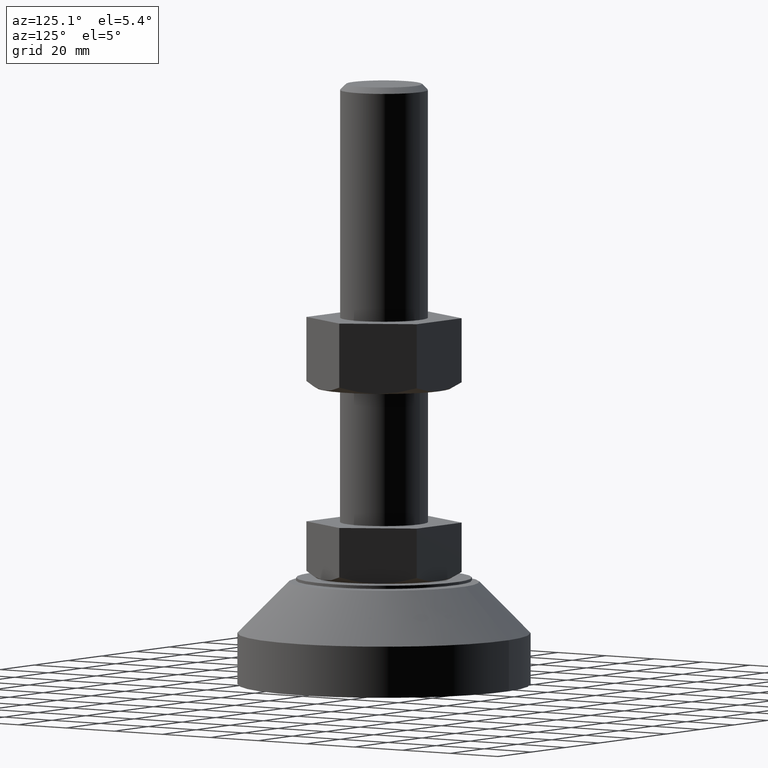
[diagram: clean part render]
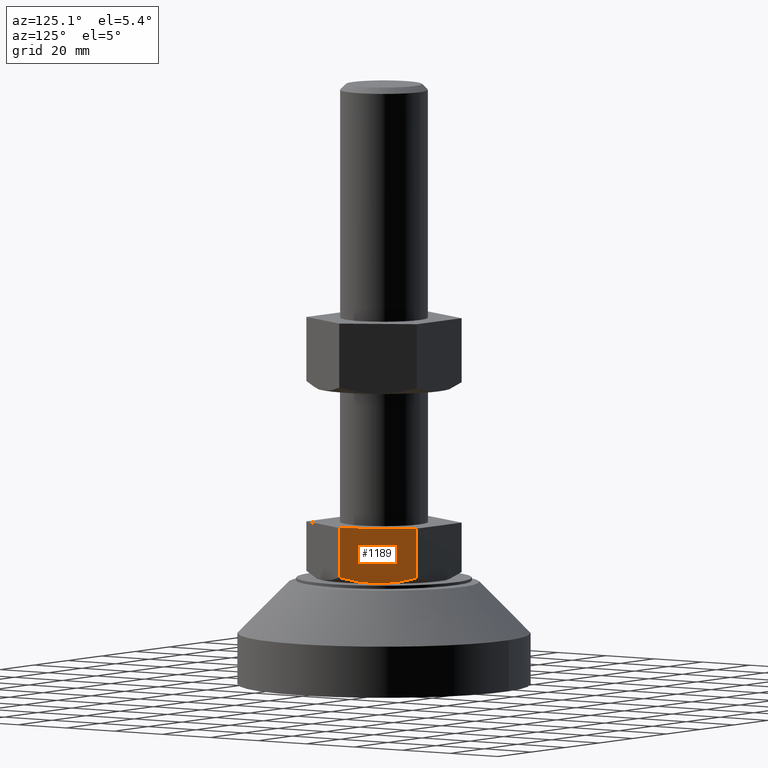
[diagram: same view with one face highlighted and labeled with its STEP entity id]
A machine part, auxiliary view. The second image highlights one B-rep face of the part: STEP entity #1189.
In plain terms, the highlighted face is a freeform B-spline surface patch.
Its self-contained STEP definition (entity closure, byte-faithful):
#1086=CARTESIAN_POINT('',(13.279056191361621,23.000000000000352,55.499999999623597));
#1087=VERTEX_POINT('',#1086);
#1088=CARTESIAN_POINT('',(26.558112382723500,1.136868E-013,55.499999999623597));
#1089=VERTEX_POINT('',#1088);
#1090=CARTESIAN_POINT('',(13.279056191361621,23.000000000000352,55.499999999623597));
#1091=CARTESIAN_POINT('',(26.558112382723500,1.136868E-013,55.499999999623597));
#1092=QUASI_UNIFORM_CURVE('',1,(#1090,#1091),.UNSPECIFIED.,.F.,.U.);
#1093=EDGE_CURVE('',#1087,#1089,#1092,.T.);
#1137=CARTESIAN_POINT('',(27.221401213778861,-1.148849955481351,35.550950036844490));
#1138=CARTESIAN_POINT('',(12.615767004134041,24.148850572389581,35.550950036844490));
#1139=CARTESIAN_POINT('',(27.221401213778861,-1.148849955481351,56.449050472398817));
#1140=CARTESIAN_POINT('',(12.615767004134041,24.148850572389581,56.449050472398817));
#1141=B_SPLINE_SURFACE_WITH_KNOTS('',1,1,((#1137,#1139),(#1138,#1140)),.UNSPECIFIED.,.F.,.F.,.U.,(2,2),(2,2),(0.0,29.211268419289649),(0.0,20.898100435554330),.UNSPECIFIED.);
#1142=CARTESIAN_POINT('',(26.558112382660749,-1.085625E-010,38.554277141207599));
#1143=VERTEX_POINT('',#1142);
#1144=CARTESIAN_POINT('',(26.558112382723500,1.136868E-013,55.499999999623597));
#1145=CARTESIAN_POINT('',(26.558112382660749,-1.085625E-010,38.554277141207599));
#1146=QUASI_UNIFORM_CURVE('',1,(#1144,#1145),.UNSPECIFIED.,.F.,.U.);
#1147=EDGE_CURVE('',#1089,#1143,#1146,.T.);
#1148=ORIENTED_EDGE('',*,*,#1147,.T.);
#1149=CARTESIAN_POINT('',(19.918584287042449,11.500000000000000,36.500000000000000));
#1150=VERTEX_POINT('',#1149);
#1151=CARTESIAN_POINT('',(26.558112382660749,-1.085625E-010,38.554277141207599));
#1152=CARTESIAN_POINT('',(25.474003041835552,1.877732459377450,37.928366321445317));
#1153=CARTESIAN_POINT('',(24.381989984447468,3.769154557302231,37.412502653615363));
#1154=CARTESIAN_POINT('',(22.726890127093899,6.635871601838604,36.876523780923677));
#1155=CARTESIAN_POINT('',(22.172336636438121,7.596386423169072,36.737595307674532));
#1156=CARTESIAN_POINT('',(21.056771503184869,9.528601913116074,36.549658240098822));
#1157=CARTESIAN_POINT('',(20.495754280117492,10.500312247389971,36.500727345272182));
#1158=CARTESIAN_POINT('',(19.927044582956650,11.485346337629640,36.500002694477402));
#1159=CARTESIAN_POINT('',(19.922814531773192,11.492673001198010,36.500000000154252));
#1160=CARTESIAN_POINT('',(19.918584286962901,11.500000000137890,36.500000001788251));
#1161=B_SPLINE_CURVE_WITH_KNOTS('',3,(#1151,#1152,#1153,#1154,#1155,#1156,#1157,#1158,#1159,#1160),.UNSPECIFIED.,.F.,.U.,(4,2,2,2,4),(0.0,0.250000000000000,0.375000000000000,0.500000000000000,0.500936671538665),.UNSPECIFIED.);
#1162=EDGE_CURVE('',#1143,#1150,#1161,.T.);
#1163=ORIENTED_EDGE('',*,*,#1162,.T.);
#1164=CARTESIAN_POINT('',(13.279056191236499,23.000000000000352,38.554277141207599));
#1165=VERTEX_POINT('',#1164);
#1166=CARTESIAN_POINT('',(19.918584287042449,11.500000000000000,36.500000000000000));
#1167=CARTESIAN_POINT('',(19.781681653224229,11.737122317463260,36.500000054673329));
#1168=CARTESIAN_POINT('',(19.644576224366261,11.974595886238800,36.502823723253869));
#1169=CARTESIAN_POINT('',(19.365714085957318,12.457599278270379,36.514333340772687));
#1170=CARTESIAN_POINT('',(19.224172057303189,12.702757263305720,36.523193134823543));
#1171=CARTESIAN_POINT('',(18.800596107578251,13.436412329093530,36.558638544108220));
#1172=CARTESIAN_POINT('',(18.519193246428550,13.923816382000060,36.594114883918358));
#1173=CARTESIAN_POINT('',(17.677800598200498,15.381151197845970,36.734544082558983));
#1174=CARTESIAN_POINT('',(17.120633329837091,16.346193214965759,36.873576611054681));
#1175=CARTESIAN_POINT('',(15.459051112976971,19.224138035520419,37.410445338645332));
#1176=CARTESIAN_POINT('',(14.364517101134000,21.119926554644639,37.927585992786049));
#1177=CARTESIAN_POINT('',(13.279056191334620,23.000000000047130,38.554277141259249));
#1178=B_SPLINE_CURVE_WITH_KNOTS('',3,(#1166,#1167,#1168,#1169,#1170,#1171,#1172,#1173,#1174,#1175,#1176,#1177),.UNSPECIFIED.,.F.,.U.,(4,2,2,2,2,4),(0.500936671560509,0.531250000000000,0.562500000000000,0.625000000000000,0.750000000000000,1.0),.UNSPECIFIED.);
#1179=EDGE_CURVE('',#1150,#1165,#1178,.T.);
#1180=ORIENTED_EDGE('',*,*,#1179,.T.);
#1181=CARTESIAN_POINT('',(13.279056191361621,23.000000000000352,55.499999999623597));
#1182=CARTESIAN_POINT('',(13.279056191236499,23.000000000000352,38.554277141207599));
#1183=QUASI_UNIFORM_CURVE('',1,(#1181,#1182),.UNSPECIFIED.,.F.,.U.);
#1184=EDGE_CURVE('',#1087,#1165,#1183,.T.);
#1185=ORIENTED_EDGE('',*,*,#1184,.F.);
#1186=ORIENTED_EDGE('',*,*,#1093,.T.);
#1187=EDGE_LOOP('',(#1148,#1163,#1180,#1185,#1186));
#1188=FACE_OUTER_BOUND('',#1187,.T.);
#1189=ADVANCED_FACE('',(#1188),#1141,.T.);